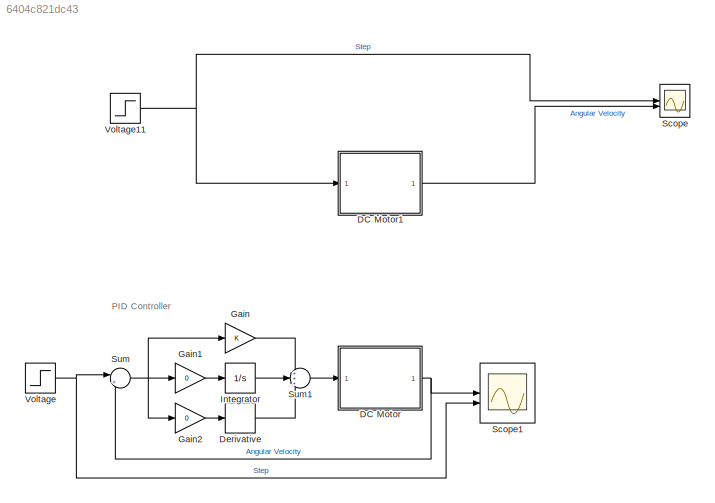
MODEL slx_6404c821dc43
KIND model
CONFIG AbsTol = auto
CONFIG EnableMultiTasking = off
CONFIG FixedStep = auto
CONFIG MaxStep = auto
CONFIG MinStep = auto
CONFIG RelTol = 1e-3
CONFIG SampleTimeConstraint = Unconstrained
CONFIG SolverName = VariableStepAuto
CONFIG StartTime = 0.0
CONFIG StopTime = 10.0
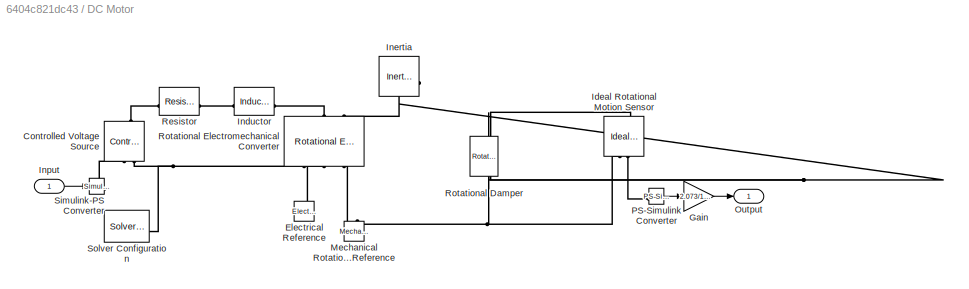
BLOCK [SubSystem] DC Motor
BLOCK [Reference] DC Motor/Controlled Voltage Source  REF=fl_lib/Electrical/Electrical Sources/Controlled Voltage
Source
  NameLocation = left
  SourceBlock = fl_lib/Electrical/Electrical Sources/Controlled Voltage\nSource
  SourceType = Controlled Voltage\nSource
BLOCK [Reference] DC Motor/Electrical Reference  REF=fl_lib/Electrical/Electrical Elements/Electrical Reference
  NameLocation = right
  SourceBlock = fl_lib/Electrical/Electrical Elements/Electrical Reference
  SourceType = Electrical Reference
BLOCK [Gain] DC Motor/Gain
  Gain = 2.073/1.649
BLOCK [Reference] DC Motor/Ideal Rotational Motion Sensor  REF=fl_lib/Mechanical/Mechanical Sensors/Ideal Rotational
Motion Sensor
  NameLocation = right
  SourceBlock = fl_lib/Mechanical/Mechanical Sensors/Ideal Rotational\nMotion Sensor
  SourceType = Ideal Rotational\nMotion Sensor
BLOCK [Reference] DC Motor/Inductor  REF=fl_lib/Electrical/Electrical Elements/Inductor
  NameLocation = top
  SourceBlock = fl_lib/Electrical/Electrical Elements/Inductor
  SourceType = Inductor
BLOCK [Reference] DC Motor/Inertia  REF=fl_lib/Mechanical/Rotational Elements/Inertia
  NameLocation = right
  SourceBlock = fl_lib/Mechanical/Rotational Elements/Inertia
  SourceType = Inertia
BLOCK [Inport] DC Motor/Input
BLOCK [Reference] DC Motor/Mechanical Rotational Reference  REF=fl_lib/Mechanical/Rotational Elements/Mechanical
Rotational Reference
  NameLocation = right
  SourceBlock = fl_lib/Mechanical/Rotational Elements/Mechanical\nRotational Reference
  SourceType = Mechanical\nRotational Reference
BLOCK [Outport] DC Motor/Output
BLOCK [Reference] DC Motor/PS-Simulink Converter  REF=nesl_utility/PS-Simulink
Converter
  SourceBlock = nesl_utility/PS-Simulink\nConverter
  SourceType = PS-Simulink\nConverter
BLOCK [Reference] DC Motor/Resistor  REF=fl_lib/Electrical/Electrical Elements/Resistor
  NameLocation = top
  SourceBlock = fl_lib/Electrical/Electrical Elements/Resistor
  SourceType = Resistor
BLOCK [Reference] DC Motor/Rotational Damper  REF=fl_lib/Mechanical/Rotational Elements/Rotational Damper
  NameLocation = right
  SourceBlock = fl_lib/Mechanical/Rotational Elements/Rotational Damper
  SourceType = Rotational Damper
BLOCK [Reference] DC Motor/Rotational Electromechanical Converter  REF=fl_lib/Electrical/Electrical Elements/Rotational
Electromechanical
Converter
  NameLocation = right
  SourceBlock = fl_lib/Electrical/Electrical Elements/Rotational\nElectromechanical\nConverter
  SourceType = Rotational\nElectromechanical\nConverter
BLOCK [Reference] DC Motor/Simulink-PS Converter  REF=nesl_utility/Simulink-PS
Converter
  SourceBlock = nesl_utility/Simulink-PS\nConverter
  SourceType = Simulink-PS\nConverter
BLOCK [Reference] DC Motor/Solver Configuration  REF=nesl_utility/Solver
Configuration
  SourceBlock = nesl_utility/Solver\nConfiguration
  SourceType = Solver\nConfiguration
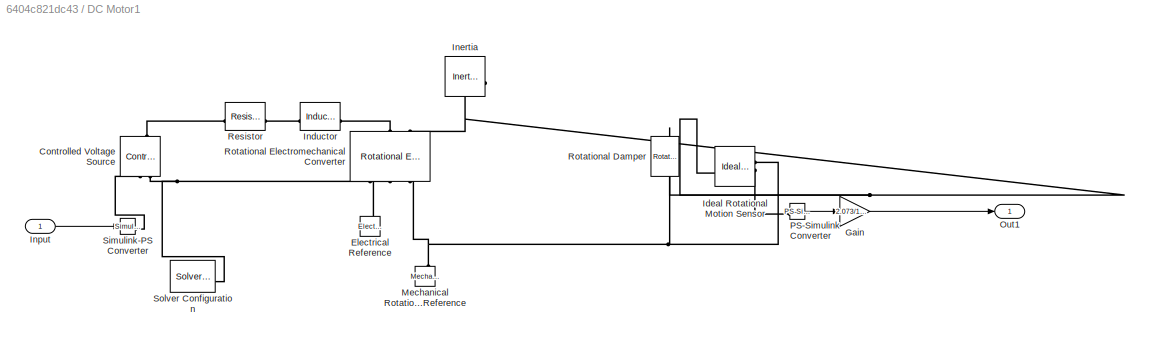
BLOCK [SubSystem] DC Motor1
BLOCK [Reference] DC Motor1/Controlled Voltage Source  REF=fl_lib/Electrical/Electrical Sources/Controlled Voltage
Source
  NameLocation = right
  SourceBlock = fl_lib/Electrical/Electrical Sources/Controlled Voltage\nSource
  SourceType = Controlled Voltage\nSource
BLOCK [Reference] DC Motor1/Electrical Reference  REF=fl_lib/Electrical/Electrical Elements/Electrical Reference
  NameLocation = right
  SourceBlock = fl_lib/Electrical/Electrical Elements/Electrical Reference
  SourceType = Electrical Reference
BLOCK [Gain] DC Motor1/Gain
  Gain = 2.073/1.649
BLOCK [Reference] DC Motor1/Ideal Rotational Motion Sensor  REF=fl_lib/Mechanical/Mechanical Sensors/Ideal Rotational
Motion Sensor
  SourceBlock = fl_lib/Mechanical/Mechanical Sensors/Ideal Rotational\nMotion Sensor
  SourceType = Ideal Rotational\nMotion Sensor
BLOCK [Reference] DC Motor1/Inductor  REF=fl_lib/Electrical/Electrical Elements/Inductor
  SourceBlock = fl_lib/Electrical/Electrical Elements/Inductor
  SourceType = Inductor
BLOCK [Reference] DC Motor1/Inertia  REF=fl_lib/Mechanical/Rotational Elements/Inertia
  NameLocation = top
  SourceBlock = fl_lib/Mechanical/Rotational Elements/Inertia
  SourceType = Inertia
BLOCK [Inport] DC Motor1/Input
BLOCK [Reference] DC Motor1/Mechanical Rotational Reference  REF=fl_lib/Mechanical/Rotational Elements/Mechanical
Rotational Reference
  NameLocation = right
  SourceBlock = fl_lib/Mechanical/Rotational Elements/Mechanical\nRotational Reference
  SourceType = Mechanical\nRotational Reference
BLOCK [Outport] DC Motor1/Out1
BLOCK [Reference] DC Motor1/PS-Simulink Converter  REF=nesl_utility/PS-Simulink
Converter
  SourceBlock = nesl_utility/PS-Simulink\nConverter
  SourceType = PS-Simulink\nConverter
BLOCK [Reference] DC Motor1/Resistor  REF=fl_lib/Electrical/Electrical Elements/Resistor
  SourceBlock = fl_lib/Electrical/Electrical Elements/Resistor
  SourceType = Resistor
BLOCK [Reference] DC Motor1/Rotational Damper  REF=fl_lib/Mechanical/Rotational Elements/Rotational Damper
  NameLocation = left
  SourceBlock = fl_lib/Mechanical/Rotational Elements/Rotational Damper
  SourceType = Rotational Damper
BLOCK [Reference] DC Motor1/Rotational Electromechanical Converter  REF=fl_lib/Electrical/Electrical Elements/Rotational
Electromechanical
Converter
  NameLocation = right
  SourceBlock = fl_lib/Electrical/Electrical Elements/Rotational\nElectromechanical\nConverter
  SourceType = Rotational\nElectromechanical\nConverter
BLOCK [Reference] DC Motor1/Simulink-PS Converter  REF=nesl_utility/Simulink-PS
Converter
  SourceBlock = nesl_utility/Simulink-PS\nConverter
  SourceType = Simulink-PS\nConverter
BLOCK [Reference] DC Motor1/Solver Configuration  REF=nesl_utility/Solver
Configuration
  SourceBlock = nesl_utility/Solver\nConfiguration
  SourceType = Solver\nConfiguration
BLOCK [Derivative] Derivative
BLOCK [Gain] Gain
BLOCK [Gain] Gain1
  Gain = 0
BLOCK [Gain] Gain2
  Gain = 0
BLOCK [Integrator] Integrator
BLOCK [Scope] Scope
  Floating = off
  NumInputPorts = 2
  ScopeSpecificationString = Simulink.scopes.TimeScopeBlockCfg('CurrentConfiguration', extmgr.ConfigurationSet(extmgr.Configuration('Core','General UI',true),extmgr.Configuration('Core','Source UI',true),extmgr.Configuration('Sources','WiredSimulink',true),extmgr.Configuration('Visuals','Time Domain',true,'SerializedDisplays',{struct('MinYLimReal','-0.2591','MaxYLimReal','2.33186','YLabelReal','','MinYLimMag','0.00000','MaxYL...<+1628ch>
BLOCK [Scope] Scope1
  Floating = off
  NumInputPorts = 2
  ScopeSpecificationString = Simulink.scopes.TimeScopeBlockCfg('CurrentConfiguration', extmgr.ConfigurationSet(extmgr.Configuration('Core','General UI',true),extmgr.Configuration('Core','Source UI',true),extmgr.Configuration('Sources','WiredSimulink',true,'DataLoggingVariableName','ScopeData1'),extmgr.Configuration('Visuals','Time Domain',true,'SerializedDisplays',{struct('MinYLimReal','-0.125','MaxYLimReal','1.125','YLabelRe...<+1413ch>
BLOCK [Sum] Sum
  Inputs = |+-
BLOCK [Sum] Sum1
  Inputs = +++
BLOCK [Step] Voltage
  SampleTime = 0
BLOCK [Step] Voltage11
  SampleTime = 0
ANNOTATION (root): PID Controller
LINE DC Motor/Gain:1 -> DC Motor/Output:1
LINE DC Motor/Input:1 -> DC Motor/Simulink-PS Converter:1
LINE DC Motor/PS-Simulink Converter:1 -> DC Motor/Gain:1
LINE DC Motor1/Gain:1 -> DC Motor1/Out1:1
LINE DC Motor1/Input:1 -> DC Motor1/Simulink-PS Converter:1
LINE DC Motor1/PS-Simulink Converter:1 -> DC Motor1/Gain:1
LINE DC Motor1:1 -> Scope:2
NET DC Motor:1 -> Scope1:1, Sum:2
LINE Derivative:1 -> Sum1:3
LINE Gain1:1 -> Integrator:1
LINE Gain2:1 -> Derivative:1
LINE Gain:1 -> Sum1:1
LINE Integrator:1 -> Sum1:2
LINE Sum1:1 -> DC Motor:1
NET Sum:1 -> Gain1:1, Gain2:1, Gain:1
NET Voltage11:1 -> DC Motor1:1, Scope:1
NET Voltage:1 -> Scope1:2, Sum:1
PLINE DC Motor/Controlled Voltage Source:LConn1 -- DC Motor/Resistor:LConn1
PLINE DC Motor/Controlled Voltage Source:RConn1 -- DC Motor/Simulink-PS Converter:RConn1
PNET net1: DC Motor/Controlled Voltage Source:RConn2 -- DC Motor/Electrical Reference:LConn1 -- DC Motor/Rotational Electromechanical Converter:RConn1 -- DC Motor/Solver Configuration:RConn1
PNET net2: DC Motor/Ideal Rotational Motion Sensor:LConn1 -- DC Motor/Inertia:LConn1 -- DC Motor/Rotational Damper:LConn1 -- DC Motor/Rotational Electromechanical Converter:LConn2
PNET net3: DC Motor/Ideal Rotational Motion Sensor:RConn1 -- DC Motor/Mechanical Rotational Reference:LConn1 -- DC Motor/Rotational Damper:RConn1 -- DC Motor/Rotational Electromechanical Converter:RConn2
PLINE DC Motor/Ideal Rotational Motion Sensor:RConn2 -- DC Motor/PS-Simulink Converter:LConn1
PLINE DC Motor/Inductor:LConn1 -- DC Motor/Resistor:RConn1
PLINE DC Motor/Inductor:RConn1 -- DC Motor/Rotational Electromechanical Converter:LConn1
PLINE DC Motor1/Controlled Voltage Source:LConn1 -- DC Motor1/Resistor:LConn1
PLINE DC Motor1/Controlled Voltage Source:RConn1 -- DC Motor1/Simulink-PS Converter:RConn1
PNET net4: DC Motor1/Controlled Voltage Source:RConn2 -- DC Motor1/Electrical Reference:LConn1 -- DC Motor1/Rotational Electromechanical Converter:RConn1 -- DC Motor1/Solver Configuration:RConn1
PNET net5: DC Motor1/Ideal Rotational Motion Sensor:LConn1 -- DC Motor1/Inertia:LConn1 -- DC Motor1/Rotational Damper:LConn1 -- DC Motor1/Rotational Electromechanical Converter:LConn2
PNET net6: DC Motor1/Ideal Rotational Motion Sensor:RConn1 -- DC Motor1/Mechanical Rotational Reference:LConn1 -- DC Motor1/Rotational Damper:RConn1 -- DC Motor1/Rotational Electromechanical Converter:RConn2
PLINE DC Motor1/Ideal Rotational Motion Sensor:RConn2 -- DC Motor1/PS-Simulink Converter:LConn1
PLINE DC Motor1/Inductor:LConn1 -- DC Motor1/Resistor:RConn1
PLINE DC Motor1/Inductor:RConn1 -- DC Motor1/Rotational Electromechanical Converter:LConn1
note: NET lines group one-source signal fan-out (src -> all destinations, sorted); 1:1 wires keep LINE; PNET lines group multi-terminal physical nets as a canonical sorted terminal list (undirected conserving connections); 2-terminal nets keep the pairwise PLINE form
